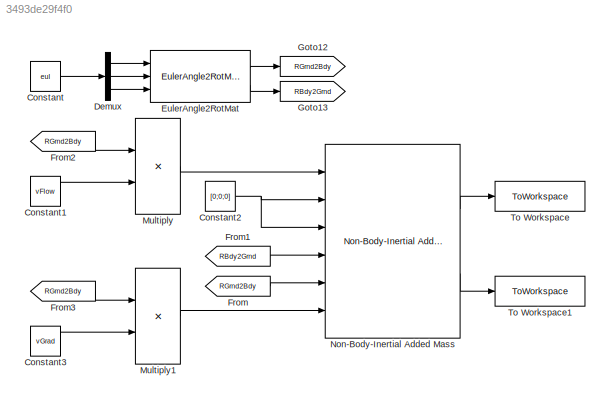
MODEL slx_3493de29f4f0
KIND model
CONFIG AbsTol = auto
CONFIG EnableMultiTasking = off
CONFIG FixedStep = auto
CONFIG MaxStep = auto
CONFIG MinStep = auto
CONFIG RelTol = 1e-3
CONFIG SampleTimeConstraint = Unconstrained
CONFIG SolverName = VariableStepAuto
CONFIG StartTime = 0.0
CONFIG StopTime = 10.0
BLOCK [Constant] Constant
  Value = eul
BLOCK [Constant] Constant1
  Value = vFlow
BLOCK [Constant] Constant2
  Value = [0;0;0]
BLOCK [Constant] Constant3
  Value = vGrad
BLOCK [Demux] Demux
  Outputs = 3
  Ports = [1, 3]
BLOCK [Reference] EulerAngle2RotMat  REF=eulAng2RotMat_ul/EulerAngle2RotMat
  Ports = [3, 2]
  SourceBlock = eulAng2RotMat_ul/EulerAngle2RotMat
  SourceType = SubSystem
BLOCK [From] From
  GotoTag = RGrnd2Bdy
BLOCK [From] From1
  GotoTag = RBdy2Grnd
BLOCK [From] From2
  GotoTag = RGrnd2Bdy
BLOCK [From] From3
  GotoTag = RGrnd2Bdy
BLOCK [Goto] Goto12
  GotoTag = RGrnd2Bdy
BLOCK [Goto] Goto13
  GotoTag = RBdy2Grnd
BLOCK [Product] Multiply
  Multiplication = Matrix(*)
  Ports = [2, 1]
BLOCK [Product] Multiply1
  Multiplication = Matrix(*)
  Ports = [2, 1]
BLOCK [Reference] Non-Body-Inertial Added Mass  REF=addedMass_cl/Non-Body-Inertial Added Mass
  Ports = [6, 2]
  SourceBlock = addedMass_cl/Non-Body-Inertial Added Mass
BLOCK [ToWorkspace] To Workspace
  FixptAsFi = on
  MaxDataPoints = inf
  Ports = [1]
  SampleTime = -1
  VariableName = Fadd
BLOCK [ToWorkspace] To Workspace1
  FixptAsFi = on
  MaxDataPoints = inf
  Ports = [1]
  SampleTime = -1
  VariableName = Madd
LINE Constant1:1 -> Multiply:2
NET Constant2:1 -> Non-Body-Inertial Added Mass:2, Non-Body-Inertial Added Mass:3
LINE Constant3:1 -> Multiply1:2
LINE Constant:1 -> Demux:1
LINE Demux:1 -> EulerAngle2RotMat:1
LINE Demux:2 -> EulerAngle2RotMat:2
LINE Demux:3 -> EulerAngle2RotMat:3
LINE EulerAngle2RotMat:1 -> Goto12:1
LINE EulerAngle2RotMat:2 -> Goto13:1
LINE From1:1 -> Non-Body-Inertial Added Mass:4
LINE From2:1 -> Multiply:1
LINE From3:1 -> Multiply1:1
LINE From:1 -> Non-Body-Inertial Added Mass:5
LINE Multiply1:1 -> Non-Body-Inertial Added Mass:6
LINE Multiply:1 -> Non-Body-Inertial Added Mass:1
LINE Non-Body-Inertial Added Mass:1 -> To Workspace:1
LINE Non-Body-Inertial Added Mass:2 -> To Workspace1:1
note: NET lines group one-source signal fan-out (src -> all destinations, sorted); 1:1 wires keep LINE
